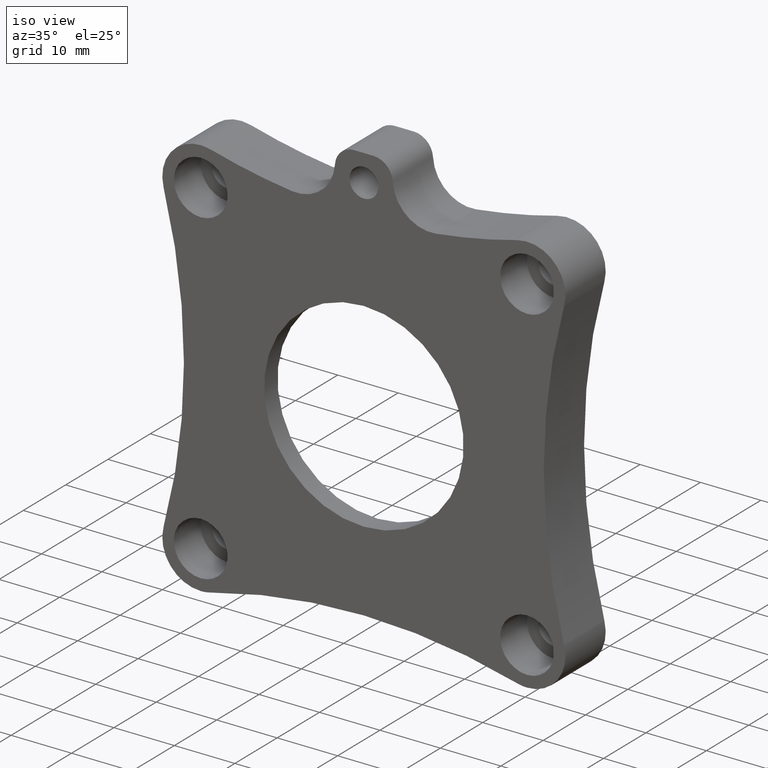
[diagram: clean part render]
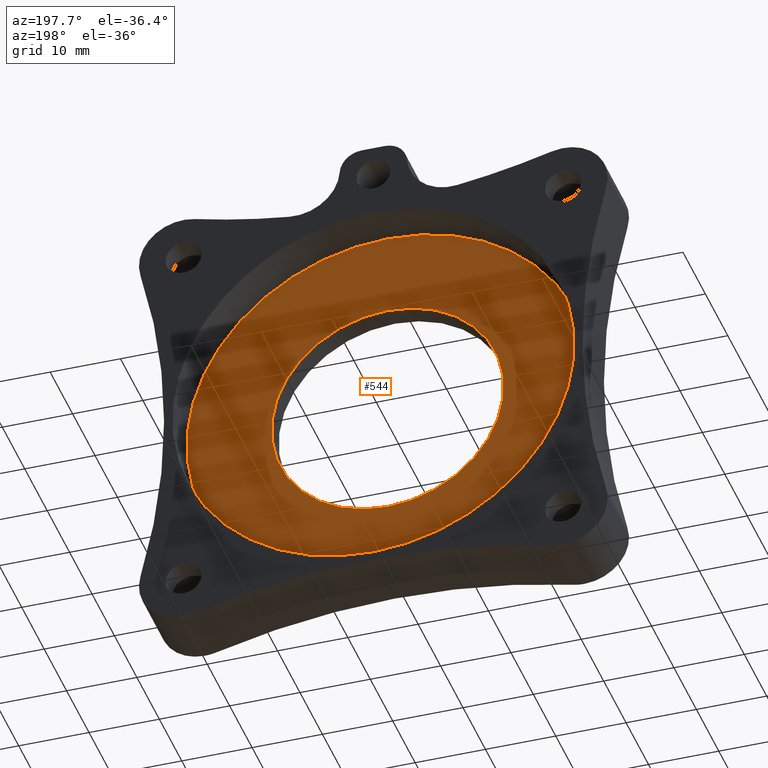
[diagram: tour spotlight — one face highlighted and labeled with its STEP entity id]
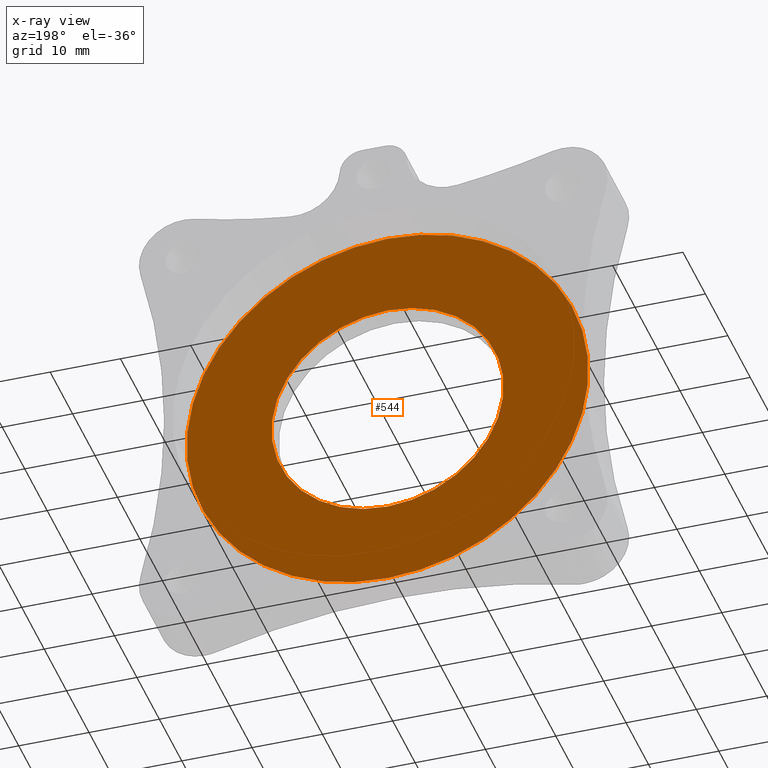
[diagram: x-ray of the same camera — body ghosted, this tour face saturated]
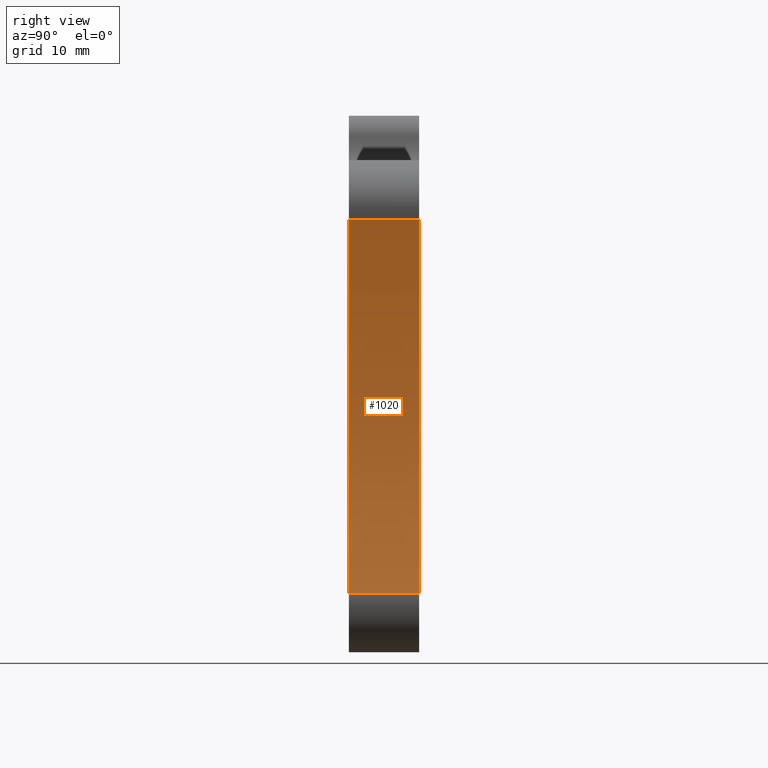
[diagram: tour spotlight — one face highlighted and labeled with its STEP entity id]
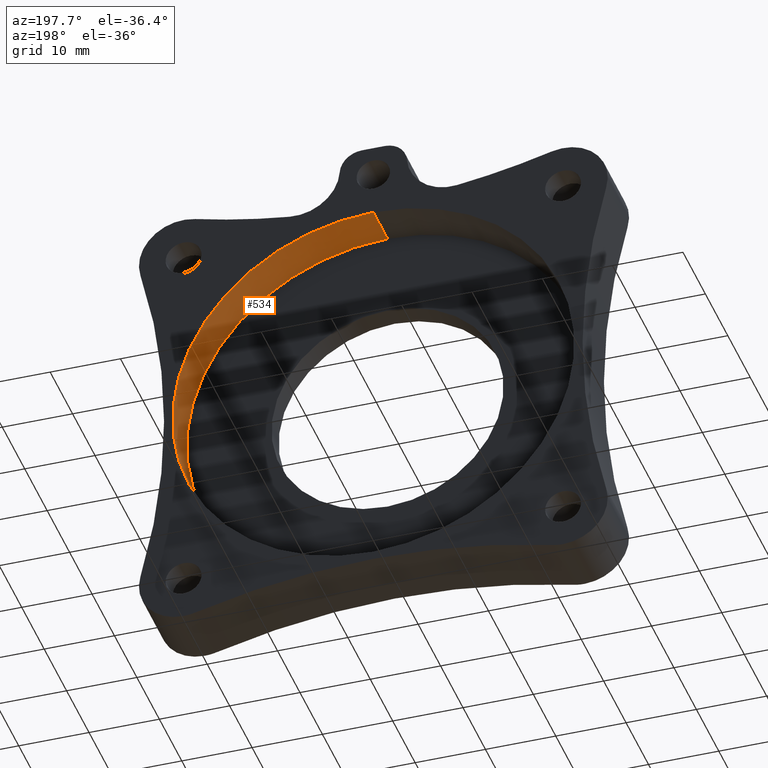
[diagram: tour spotlight — one face highlighted and labeled with its STEP entity id]
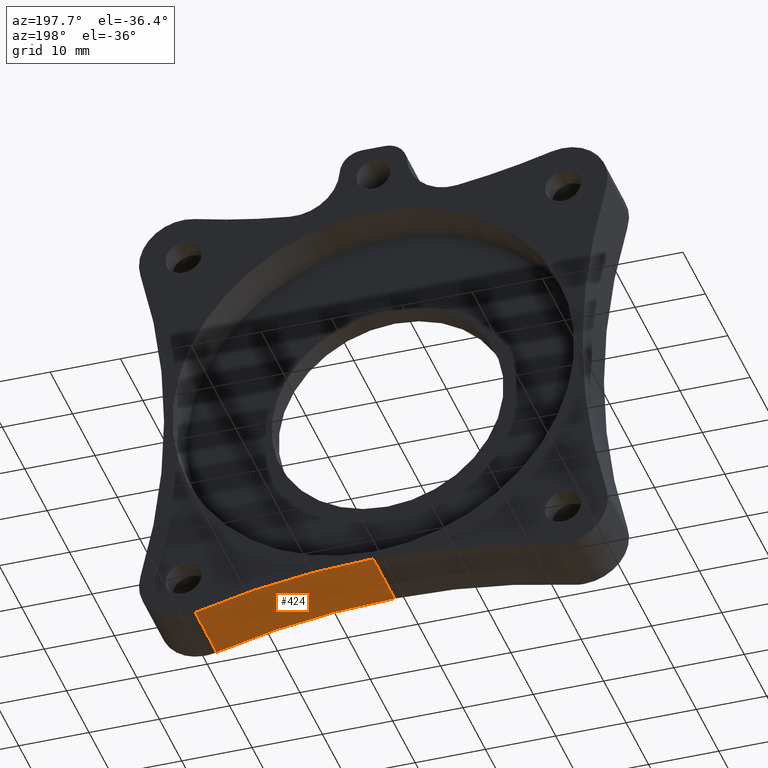
[diagram: tour spotlight — one face highlighted and labeled with its STEP entity id]
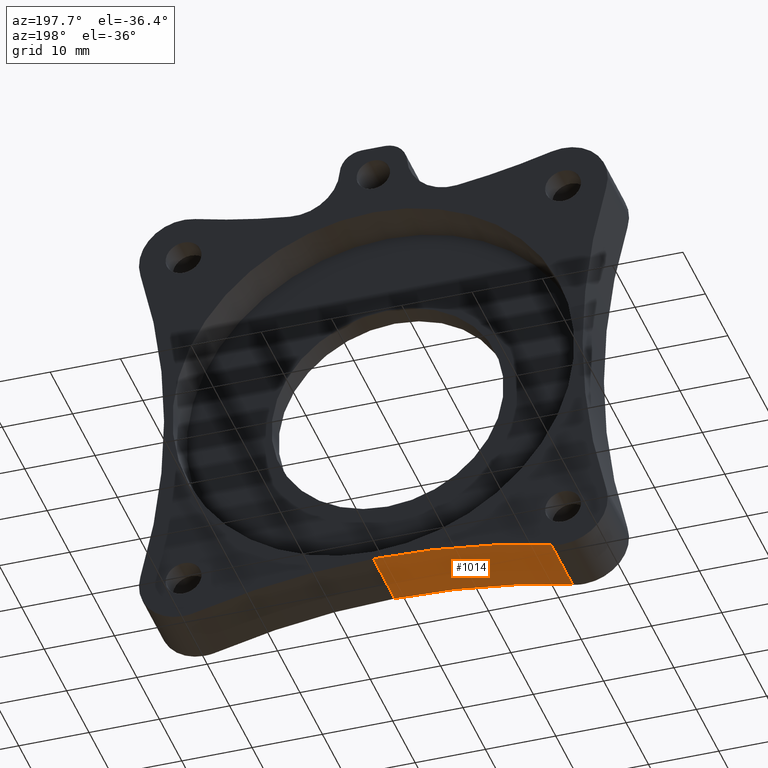
[diagram: tour spotlight — one face highlighted and labeled with its STEP entity id]
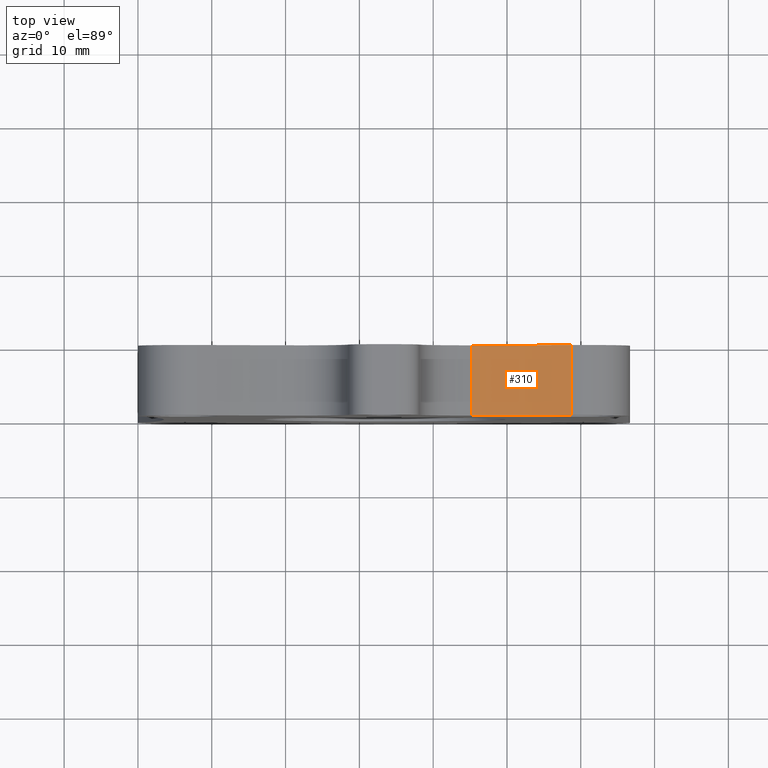
[diagram: tour spotlight — one face highlighted and labeled with its STEP entity id]
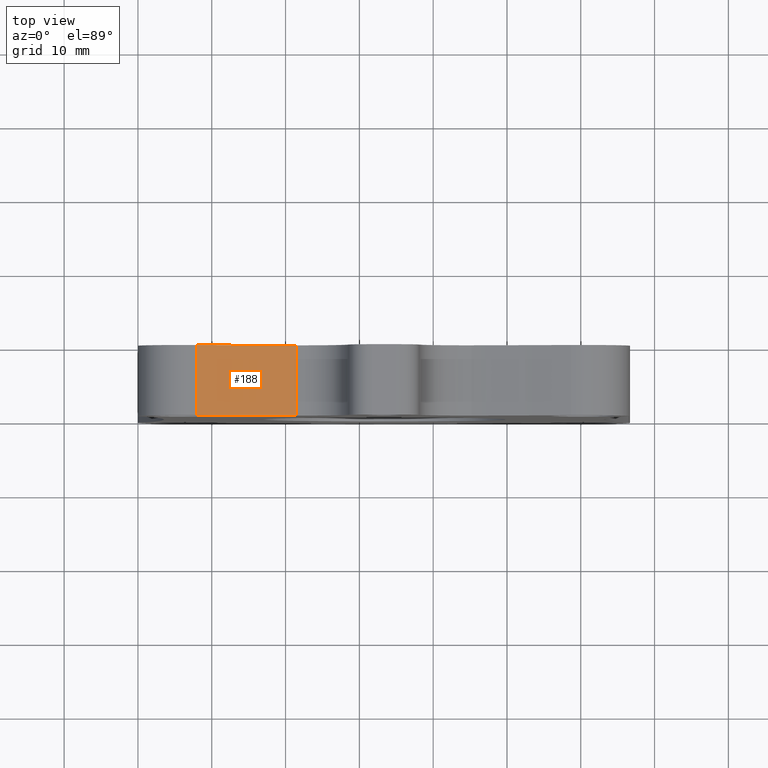
[diagram: tour spotlight — one face highlighted and labeled with its STEP entity id]
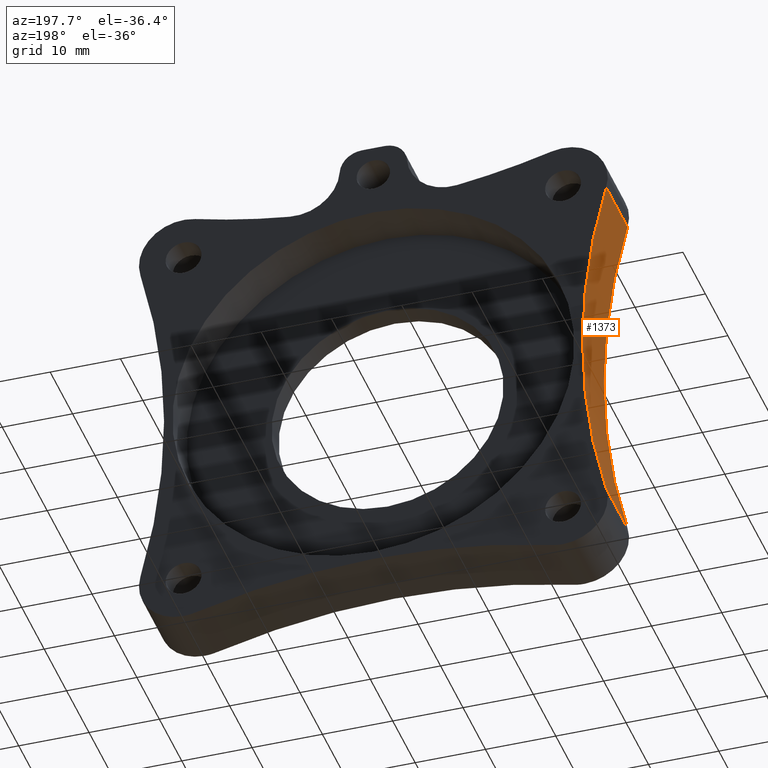
[diagram: tour spotlight — one face highlighted and labeled with its STEP entity id]
A machine part: a face-by-face anatomy tour. The part has 46 B-rep faces; the first image is the clean iso view, then the 8 largest visible faces are spotlighted one at a time (largest first), each with its STEP entity span.

Face 1 — auxiliary view, entity #544. An x-ray twin of the same camera follows (body ghosted, this face saturated) — the face is partly hidden behind the body. In plain terms, the highlighted planar face has unit normal (0, 1, 0).
Definition (entity closure, byte-faithful):
#3 = AXIS2_PLACEMENT_3D ( 'NONE', #752, #154, #988 ) ;
#19 = DIRECTION ( 'NONE',  ( 0.0000000000000000000, 0.0000000000000000000, 1.000000000000000000 ) ) ;
#87 = EDGE_LOOP ( 'NONE', ( #1187, #1343 ) ) ;
#114 = ORIENTED_EDGE ( 'NONE', *, *, #380, .T. ) ;
#154 = DIRECTION ( 'NONE',  ( 0.0000000000000000000, 1.000000000000000000, 0.0000000000000000000 ) ) ;
#162 = ORIENTED_EDGE ( 'NONE', *, *, #286, .T. ) ;
#215 = EDGE_CURVE ( 'NONE', #275, #1285, #845, .T. ) ;
#254 = CIRCLE ( 'NONE', #1176, 0.6500000000000001300 ) ;
#275 = VERTEX_POINT ( 'NONE', #611 ) ;
#280 = AXIS2_PLACEMENT_3D ( 'NONE', #513, #1328, #643 ) ;
#286 = EDGE_CURVE ( 'NONE', #1395, #1105, #254, .T. ) ;
#325 = CARTESIAN_POINT ( 'NONE',  ( 1.312500000000000000, 0.1250000000000000300, -1.312500000000000000 ) ) ;
#380 = EDGE_CURVE ( 'NONE', #1105, #1395, #745, .T. ) ;
#447 = DIRECTION ( 'NONE',  ( 0.0000000000000000000, 0.0000000000000000000, 1.000000000000000000 ) ) ;
#486 = DIRECTION ( 'NONE',  ( 0.0000000000000000000, 0.0000000000000000000, 1.000000000000000000 ) ) ;
#490 = CIRCLE ( 'NONE', #714, 1.124749999999999500 ) ;
#513 = CARTESIAN_POINT ( 'NONE',  ( 1.312500000000000000, 0.1250000000000000300, -1.312500000000000000 ) ) ;
#544 = ADVANCED_FACE ( 'NONE', ( #561, #1485 ), #634, .T. ) ;
#561 = FACE_OUTER_BOUND ( 'NONE', #87, .T. ) ;
#611 = CARTESIAN_POINT ( 'NONE',  ( 1.312500000000000200, 0.1250000000000000300, -2.437249999999999700 ) ) ;
#616 = CARTESIAN_POINT ( 'NONE',  ( 1.312500000000000000, 0.1250000000000000300, -1.312500000000000000 ) ) ;
#634 = PLANE ( 'NONE',  #3 ) ;
#637 = AXIS2_PLACEMENT_3D ( 'NONE', #616, #1307, #486 ) ;
#643 = DIRECTION ( 'NONE',  ( 0.0000000000000000000, 0.0000000000000000000, 1.000000000000000000 ) ) ;
#690 = EDGE_LOOP ( 'NONE', ( #114, #162 ) ) ;
#714 = AXIS2_PLACEMENT_3D ( 'NONE', #325, #1156, #447 ) ;
#736 = DIRECTION ( 'NONE',  ( -0.0000000000000000000, -1.000000000000000000, -0.0000000000000000000 ) ) ;
#745 = CIRCLE ( 'NONE', #280, 0.6500000000000001300 ) ;
#752 = CARTESIAN_POINT ( 'NONE',  ( 1.312500000000000000, 0.1250000000000000300, -1.312500000000000000 ) ) ;
#774 = EDGE_CURVE ( 'NONE', #1285, #275, #490, .T. ) ;
#845 = CIRCLE ( 'NONE', #637, 1.124749999999999500 ) ;
#988 = DIRECTION ( 'NONE',  ( 0.0000000000000000000, -0.0000000000000000000, 1.000000000000000000 ) ) ;
#1098 = CARTESIAN_POINT ( 'NONE',  ( 1.312500000000000000, 0.1250000000000000300, -1.962500000000000100 ) ) ;
#1105 = VERTEX_POINT ( 'NONE', #1258 ) ;
#1156 = DIRECTION ( 'NONE',  ( 0.0000000000000000000, 1.000000000000000000, 0.0000000000000000000 ) ) ;
#1176 = AXIS2_PLACEMENT_3D ( 'NONE', #1425, #736, #19 ) ;
#1187 = ORIENTED_EDGE ( 'NONE', *, *, #774, .T. ) ;
#1258 = CARTESIAN_POINT ( 'NONE',  ( 1.312500000000000000, 0.1250000000000000300, -0.6624999999999998700 ) ) ;
#1285 = VERTEX_POINT ( 'NONE', #1365 ) ;
#1307 = DIRECTION ( 'NONE',  ( 0.0000000000000000000, 1.000000000000000000, 0.0000000000000000000 ) ) ;
#1328 = DIRECTION ( 'NONE',  ( -0.0000000000000000000, -1.000000000000000000, -0.0000000000000000000 ) ) ;
#1343 = ORIENTED_EDGE ( 'NONE', *, *, #215, .T. ) ;
#1365 = CARTESIAN_POINT ( 'NONE',  ( 1.312500000000000000, 0.1250000000000000300, -0.1877500000000004700 ) ) ;
#1395 = VERTEX_POINT ( 'NONE', #1098 ) ;
#1425 = CARTESIAN_POINT ( 'NONE',  ( 1.312500000000000000, 0.1250000000000000300, -1.312500000000000000 ) ) ;
#1485 = FACE_BOUND ( 'NONE', #690, .T. ) ;

Face 2 — right view, entity #1020. In plain terms, the highlighted cylindrical surface (partial cylindrical patch) has radius 97.2397 mm, axis along (-0, 1, -0).
Definition (entity closure, byte-faithful):
#83 = CARTESIAN_POINT ( 'NONE',  ( 2.616366909433479400, 0.0000000000000000000, -2.309869246660809100 ) ) ;
#102 = LINE ( 'NONE', #83, #1301 ) ;
#187 = VECTOR ( 'NONE', #379, 39.37007874015748100 ) ;
#220 = VERTEX_POINT ( 'NONE', #1007 ) ;
#226 = VERTEX_POINT ( 'NONE', #649 ) ;
#228 = EDGE_LOOP ( 'NONE', ( #476, #469, #328, #746 ) ) ;
#292 = DIRECTION ( 'NONE',  ( -0.0000000000000000000, -1.000000000000000000, -0.0000000000000000000 ) ) ;
#328 = ORIENTED_EDGE ( 'NONE', *, *, #981, .T. ) ;
#336 = EDGE_CURVE ( 'NONE', #832, #226, #492, .T. ) ;
#379 = DIRECTION ( 'NONE',  ( -0.0000000000000000000, 1.000000000000000000, -0.0000000000000000000 ) ) ;
#439 = CYLINDRICAL_SURFACE ( 'NONE', #1077, 3.828334525268862500 ) ;
#469 = ORIENTED_EDGE ( 'NONE', *, *, #336, .F. ) ;
#476 = ORIENTED_EDGE ( 'NONE', *, *, #1478, .F. ) ;
#492 = LINE ( 'NONE', #1204, #187 ) ;
#509 = FACE_OUTER_BOUND ( 'NONE', #228, .T. ) ;
#649 = CARTESIAN_POINT ( 'NONE',  ( 2.616366909433478900, 0.3750000000000000600, -0.3151307533391926000 ) ) ;
#651 = CARTESIAN_POINT ( 'NONE',  ( 6.312500000000000000, 0.3750000000000000600, -1.312500000000000000 ) ) ;
#678 = AXIS2_PLACEMENT_3D ( 'NONE', #651, #1454, #773 ) ;
#746 = ORIENTED_EDGE ( 'NONE', *, *, #1081, .T. ) ;
#769 = AXIS2_PLACEMENT_3D ( 'NONE', #939, #292, #1118 ) ;
#770 = CIRCLE ( 'NONE', #678, 3.828334525268862500 ) ;
#773 = DIRECTION ( 'NONE',  ( 0.0000000000000000000, 0.0000000000000000000, 1.000000000000000000 ) ) ;
#782 = CARTESIAN_POINT ( 'NONE',  ( 6.312500000000000000, 0.0000000000000000000, -1.312500000000000000 ) ) ;
#832 = VERTEX_POINT ( 'NONE', #1166 ) ;
#872 = CIRCLE ( 'NONE', #769, 3.828334525268862500 ) ;
#903 = DIRECTION ( 'NONE',  ( -0.0000000000000000000, 1.000000000000000000, -0.0000000000000000000 ) ) ;
#919 = DIRECTION ( 'NONE',  ( -0.0000000000000000000, 1.000000000000000000, -0.0000000000000000000 ) ) ;
#939 = CARTESIAN_POINT ( 'NONE',  ( 6.312500000000000000, 0.0000000000000000000, -1.312500000000000000 ) ) ;
#981 = EDGE_CURVE ( 'NONE', #832, #1012, #872, .T. ) ;
#1007 = CARTESIAN_POINT ( 'NONE',  ( 2.616366909433479400, 0.3750000000000000600, -2.309869246660809100 ) ) ;
#1012 = VERTEX_POINT ( 'NONE', #1354 ) ;
#1020 = ADVANCED_FACE ( 'NONE', ( #509 ), #439, .F. ) ;
#1077 = AXIS2_PLACEMENT_3D ( 'NONE', #782, #903, #1468 ) ;
#1081 = EDGE_CURVE ( 'NONE', #1012, #220, #102, .T. ) ;
#1118 = DIRECTION ( 'NONE',  ( 0.0000000000000000000, 0.0000000000000000000, 1.000000000000000000 ) ) ;
#1166 = CARTESIAN_POINT ( 'NONE',  ( 2.616366909433478900, 0.0000000000000000000, -0.3151307533391926000 ) ) ;
#1204 = CARTESIAN_POINT ( 'NONE',  ( 2.616366909433478900, 0.0000000000000000000, -0.3151307533391926000 ) ) ;
#1301 = VECTOR ( 'NONE', #919, 39.37007874015748100 ) ;
#1354 = CARTESIAN_POINT ( 'NONE',  ( 2.616366909433479400, 0.0000000000000000000, -2.309869246660809100 ) ) ;
#1454 = DIRECTION ( 'NONE',  ( -0.0000000000000000000, -1.000000000000000000, -0.0000000000000000000 ) ) ;
#1468 = DIRECTION ( 'NONE',  ( 0.0000000000000000000, 0.0000000000000000000, 1.000000000000000000 ) ) ;
#1478 = EDGE_CURVE ( 'NONE', #226, #220, #770, .T. ) ;

Face 3 — auxiliary view, entity #534. In plain terms, the highlighted cylindrical surface (partial cylindrical patch) has radius 28.5686 mm, axis along (-0, 1, -0).
Definition (entity closure, byte-faithful):
#24 = DIRECTION ( 'NONE',  ( -0.0000000000000000000, 1.000000000000000000, -0.0000000000000000000 ) ) ;
#73 = DIRECTION ( 'NONE',  ( 0.0000000000000000000, 0.0000000000000000000, 1.000000000000000000 ) ) ;
#170 = VERTEX_POINT ( 'NONE', #1170 ) ;
#183 = ORIENTED_EDGE ( 'NONE', *, *, #1276, .T. ) ;
#193 = CARTESIAN_POINT ( 'NONE',  ( 1.312500000000000200, 0.1250000000000000300, -2.437249999999999700 ) ) ;
#236 = CYLINDRICAL_SURFACE ( 'NONE', #1453, 1.124749999999999500 ) ;
#256 = EDGE_CURVE ( 'NONE', #1285, #170, #521, .T. ) ;
#275 = VERTEX_POINT ( 'NONE', #611 ) ;
#305 = DIRECTION ( 'NONE',  ( -0.0000000000000000000, 1.000000000000000000, -0.0000000000000000000 ) ) ;
#321 = VECTOR ( 'NONE', #305, 39.37007874015748100 ) ;
#325 = CARTESIAN_POINT ( 'NONE',  ( 1.312500000000000000, 0.1250000000000000300, -1.312500000000000000 ) ) ;
#376 = ORIENTED_EDGE ( 'NONE', *, *, #256, .T. ) ;
#447 = DIRECTION ( 'NONE',  ( 0.0000000000000000000, 0.0000000000000000000, 1.000000000000000000 ) ) ;
#480 = CARTESIAN_POINT ( 'NONE',  ( 1.312500000000000000, 0.1250000000000000300, -0.1877500000000004700 ) ) ;
#490 = CIRCLE ( 'NONE', #714, 1.124749999999999500 ) ;
#521 = LINE ( 'NONE', #480, #1415 ) ;
#534 = ADVANCED_FACE ( 'NONE', ( #1210 ), #236, .F. ) ;
#611 = CARTESIAN_POINT ( 'NONE',  ( 1.312500000000000200, 0.1250000000000000300, -2.437249999999999700 ) ) ;
#639 = VERTEX_POINT ( 'NONE', #970 ) ;
#681 = LINE ( 'NONE', #193, #321 ) ;
#714 = AXIS2_PLACEMENT_3D ( 'NONE', #325, #1156, #447 ) ;
#774 = EDGE_CURVE ( 'NONE', #1285, #275, #490, .T. ) ;
#793 = DIRECTION ( 'NONE',  ( 0.0000000000000000000, 1.000000000000000000, 0.0000000000000000000 ) ) ;
#865 = CARTESIAN_POINT ( 'NONE',  ( 1.312500000000000000, 0.1250000000000000300, -1.312500000000000000 ) ) ;
#970 = CARTESIAN_POINT ( 'NONE',  ( 1.312500000000000200, 0.3750000000000000600, -2.437249999999999700 ) ) ;
#985 = DIRECTION ( 'NONE',  ( 0.0000000000000000000, 0.0000000000000000000, 1.000000000000000000 ) ) ;
#1156 = DIRECTION ( 'NONE',  ( 0.0000000000000000000, 1.000000000000000000, 0.0000000000000000000 ) ) ;
#1170 = CARTESIAN_POINT ( 'NONE',  ( 1.312500000000000000, 0.3750000000000000600, -0.1877500000000004700 ) ) ;
#1186 = DIRECTION ( 'NONE',  ( -0.0000000000000000000, 1.000000000000000000, -0.0000000000000000000 ) ) ;
#1195 = AXIS2_PLACEMENT_3D ( 'NONE', #1476, #793, #73 ) ;
#1210 = FACE_OUTER_BOUND ( 'NONE', #1336, .T. ) ;
#1231 = ORIENTED_EDGE ( 'NONE', *, *, #774, .F. ) ;
#1276 = EDGE_CURVE ( 'NONE', #170, #639, #1286, .T. ) ;
#1280 = ORIENTED_EDGE ( 'NONE', *, *, #1302, .F. ) ;
#1285 = VERTEX_POINT ( 'NONE', #1365 ) ;
#1286 = CIRCLE ( 'NONE', #1195, 1.124749999999999500 ) ;
#1302 = EDGE_CURVE ( 'NONE', #275, #639, #681, .T. ) ;
#1336 = EDGE_LOOP ( 'NONE', ( #1280, #1231, #376, #183 ) ) ;
#1365 = CARTESIAN_POINT ( 'NONE',  ( 1.312500000000000000, 0.1250000000000000300, -0.1877500000000004700 ) ) ;
#1415 = VECTOR ( 'NONE', #1186, 39.37007874015748100 ) ;
#1453 = AXIS2_PLACEMENT_3D ( 'NONE', #865, #24, #985 ) ;
#1476 = CARTESIAN_POINT ( 'NONE',  ( 1.312500000000000000, 0.3750000000000000600, -1.312500000000000000 ) ) ;

Face 4 — auxiliary view, entity #424. In plain terms, the highlighted cylindrical surface (partial cylindrical patch) has radius 97.2397 mm, axis along (-0, 1, -0).
Definition (entity closure, byte-faithful):
#37 = DIRECTION ( 'NONE',  ( 0.0000000000000000000, 0.0000000000000000000, 1.000000000000000000 ) ) ;
#57 = CARTESIAN_POINT ( 'NONE',  ( 2.309869246660806800, 0.0000000000000000000, -2.616366909433478900 ) ) ;
#82 = LINE ( 'NONE', #57, #1257 ) ;
#128 = EDGE_CURVE ( 'NONE', #515, #531, #82, .T. ) ;
#147 = CARTESIAN_POINT ( 'NONE',  ( 2.309869246660806800, 0.3750000000000000600, -2.616366909433478900 ) ) ;
#190 = VERTEX_POINT ( 'NONE', #660 ) ;
#239 = CARTESIAN_POINT ( 'NONE',  ( 1.312500000000000000, 0.0000000000000000000, -2.484165474731136600 ) ) ;
#332 = EDGE_LOOP ( 'NONE', ( #1290, #343, #1442, #650 ) ) ;
#343 = ORIENTED_EDGE ( 'NONE', *, *, #413, .T. ) ;
#344 = CYLINDRICAL_SURFACE ( 'NONE', #765, 3.828334525268863400 ) ;
#357 = EDGE_CURVE ( 'NONE', #531, #605, #1091, .T. ) ;
#413 = EDGE_CURVE ( 'NONE', #190, #605, #1361, .T. ) ;
#424 = ADVANCED_FACE ( 'NONE', ( #708 ), #344, .F. ) ;
#431 = DIRECTION ( 'NONE',  ( -0.0000000000000000000, -1.000000000000000000, -0.0000000000000000000 ) ) ;
#515 = VERTEX_POINT ( 'NONE', #747 ) ;
#531 = VERTEX_POINT ( 'NONE', #147 ) ;
#603 = DIRECTION ( 'NONE',  ( -0.0000000000000000000, 1.000000000000000000, -0.0000000000000000000 ) ) ;
#605 = VERTEX_POINT ( 'NONE', #1183 ) ;
#625 = DIRECTION ( 'NONE',  ( -0.0000000000000000000, 1.000000000000000000, -0.0000000000000000000 ) ) ;
#650 = ORIENTED_EDGE ( 'NONE', *, *, #128, .F. ) ;
#660 = CARTESIAN_POINT ( 'NONE',  ( 1.312500000000000000, 0.0000000000000000000, -2.484165474731136600 ) ) ;
#708 = FACE_OUTER_BOUND ( 'NONE', #332, .T. ) ;
#720 = DIRECTION ( 'NONE',  ( 0.0000000000000000000, 0.0000000000000000000, 1.000000000000000000 ) ) ;
#747 = CARTESIAN_POINT ( 'NONE',  ( 2.309869246660806800, 0.0000000000000000000, -2.616366909433478900 ) ) ;
#755 = DIRECTION ( 'NONE',  ( -0.0000000000000000000, -1.000000000000000000, -0.0000000000000000000 ) ) ;
#765 = AXIS2_PLACEMENT_3D ( 'NONE', #1516, #603, #720 ) ;
#1023 = VECTOR ( 'NONE', #1070, 39.37007874015748100 ) ;
#1050 = CIRCLE ( 'NONE', #1297, 3.828334525268863400 ) ;
#1056 = EDGE_CURVE ( 'NONE', #515, #190, #1050, .T. ) ;
#1070 = DIRECTION ( 'NONE',  ( -0.0000000000000000000, 1.000000000000000000, -0.0000000000000000000 ) ) ;
#1091 = CIRCLE ( 'NONE', #1486, 3.828334525268863400 ) ;
#1139 = CARTESIAN_POINT ( 'NONE',  ( 1.312500000000000000, 0.0000000000000000000, -6.312500000000000000 ) ) ;
#1183 = CARTESIAN_POINT ( 'NONE',  ( 1.312500000000000000, 0.3750000000000000600, -2.484165474731136600 ) ) ;
#1251 = DIRECTION ( 'NONE',  ( 0.0000000000000000000, 0.0000000000000000000, 1.000000000000000000 ) ) ;
#1257 = VECTOR ( 'NONE', #625, 39.37007874015748100 ) ;
#1290 = ORIENTED_EDGE ( 'NONE', *, *, #1056, .T. ) ;
#1297 = AXIS2_PLACEMENT_3D ( 'NONE', #1139, #431, #1251 ) ;
#1361 = LINE ( 'NONE', #239, #1023 ) ;
#1440 = CARTESIAN_POINT ( 'NONE',  ( 1.312500000000000000, 0.3750000000000000600, -6.312500000000000000 ) ) ;
#1442 = ORIENTED_EDGE ( 'NONE', *, *, #357, .F. ) ;
#1486 = AXIS2_PLACEMENT_3D ( 'NONE', #1440, #755, #37 ) ;
#1516 = CARTESIAN_POINT ( 'NONE',  ( 1.312500000000000000, 0.0000000000000000000, -6.312500000000000000 ) ) ;

Face 5 — auxiliary view, entity #1014. In plain terms, the highlighted cylindrical surface (partial cylindrical patch) has radius 97.2397 mm, axis along (-0, 1, -0).
Definition (entity closure, byte-faithful):
#8 = CARTESIAN_POINT ( 'NONE',  ( 0.3151307533391903800, 0.0000000000000000000, -2.616366909433478900 ) ) ;
#118 = DIRECTION ( 'NONE',  ( -0.0000000000000000000, -1.000000000000000000, -0.0000000000000000000 ) ) ;
#161 = FACE_OUTER_BOUND ( 'NONE', #817, .T. ) ;
#190 = VERTEX_POINT ( 'NONE', #660 ) ;
#206 = DIRECTION ( 'NONE',  ( -0.0000000000000000000, -1.000000000000000000, -0.0000000000000000000 ) ) ;
#221 = CIRCLE ( 'NONE', #467, 3.828334525268863400 ) ;
#239 = CARTESIAN_POINT ( 'NONE',  ( 1.312500000000000000, 0.0000000000000000000, -2.484165474731136600 ) ) ;
#312 = ORIENTED_EDGE ( 'NONE', *, *, #464, .T. ) ;
#316 = VECTOR ( 'NONE', #1189, 39.37007874015748100 ) ;
#359 = CARTESIAN_POINT ( 'NONE',  ( 0.3151307533391903800, 0.3750000000000000600, -2.616366909433478900 ) ) ;
#413 = EDGE_CURVE ( 'NONE', #190, #605, #1361, .T. ) ;
#426 = VERTEX_POINT ( 'NONE', #359 ) ;
#464 = EDGE_CURVE ( 'NONE', #1049, #426, #951, .T. ) ;
#467 = AXIS2_PLACEMENT_3D ( 'NONE', #922, #206, #1034 ) ;
#510 = ORIENTED_EDGE ( 'NONE', *, *, #551, .T. ) ;
#535 = DIRECTION ( 'NONE',  ( 0.0000000000000000000, 0.0000000000000000000, 1.000000000000000000 ) ) ;
#551 = EDGE_CURVE ( 'NONE', #190, #1049, #595, .T. ) ;
#595 = CIRCLE ( 'NONE', #1295, 3.828334525268863400 ) ;
#605 = VERTEX_POINT ( 'NONE', #1183 ) ;
#660 = CARTESIAN_POINT ( 'NONE',  ( 1.312500000000000000, 0.0000000000000000000, -2.484165474731136600 ) ) ;
#695 = CARTESIAN_POINT ( 'NONE',  ( 1.312500000000000000, 0.0000000000000000000, -6.312500000000000000 ) ) ;
#698 = DIRECTION ( 'NONE',  ( -0.0000000000000000000, 1.000000000000000000, -0.0000000000000000000 ) ) ;
#699 = ORIENTED_EDGE ( 'NONE', *, *, #737, .F. ) ;
#737 = EDGE_CURVE ( 'NONE', #605, #426, #221, .T. ) ;
#792 = ORIENTED_EDGE ( 'NONE', *, *, #413, .F. ) ;
#817 = EDGE_LOOP ( 'NONE', ( #792, #510, #312, #699 ) ) ;
#837 = CARTESIAN_POINT ( 'NONE',  ( 1.312500000000000000, 0.0000000000000000000, -6.312500000000000000 ) ) ;
#922 = CARTESIAN_POINT ( 'NONE',  ( 1.312500000000000000, 0.3750000000000000600, -6.312500000000000000 ) ) ;
#951 = LINE ( 'NONE', #8, #316 ) ;
#955 = DIRECTION ( 'NONE',  ( 0.0000000000000000000, 0.0000000000000000000, 1.000000000000000000 ) ) ;
#1004 = AXIS2_PLACEMENT_3D ( 'NONE', #695, #698, #535 ) ;
#1014 = ADVANCED_FACE ( 'NONE', ( #161 ), #1067, .F. ) ;
#1023 = VECTOR ( 'NONE', #1070, 39.37007874015748100 ) ;
#1034 = DIRECTION ( 'NONE',  ( 0.0000000000000000000, 0.0000000000000000000, 1.000000000000000000 ) ) ;
#1049 = VERTEX_POINT ( 'NONE', #1237 ) ;
#1067 = CYLINDRICAL_SURFACE ( 'NONE', #1004, 3.828334525268863400 ) ;
#1070 = DIRECTION ( 'NONE',  ( -0.0000000000000000000, 1.000000000000000000, -0.0000000000000000000 ) ) ;
#1183 = CARTESIAN_POINT ( 'NONE',  ( 1.312500000000000000, 0.3750000000000000600, -2.484165474731136600 ) ) ;
#1189 = DIRECTION ( 'NONE',  ( -0.0000000000000000000, 1.000000000000000000, -0.0000000000000000000 ) ) ;
#1237 = CARTESIAN_POINT ( 'NONE',  ( 0.3151307533391903800, 0.0000000000000000000, -2.616366909433478900 ) ) ;
#1295 = AXIS2_PLACEMENT_3D ( 'NONE', #837, #118, #955 ) ;
#1361 = LINE ( 'NONE', #239, #1023 ) ;

Face 6 — top view, entity #310. In plain terms, the highlighted cylindrical surface (partial cylindrical patch) has radius 97.2397 mm, axis along (-0, 1, -0).
Definition (entity closure, byte-faithful):
#23 = DIRECTION ( 'NONE',  ( -0.0000000000000000000, 1.000000000000000000, -0.0000000000000000000 ) ) ;
#39 = VECTOR ( 'NONE', #91, 39.37007874015748100 ) ;
#40 = AXIS2_PLACEMENT_3D ( 'NONE', #370, #23, #1198 ) ;
#44 = VERTEX_POINT ( 'NONE', #1254 ) ;
#91 = DIRECTION ( 'NONE',  ( 0.0000000000000000000, -1.000000000000000000, 0.0000000000000000000 ) ) ;
#141 = DIRECTION ( 'NONE',  ( -0.0000000000000000000, 1.000000000000000000, -0.0000000000000000000 ) ) ;
#146 = EDGE_CURVE ( 'NONE', #468, #44, #956, .T. ) ;
#189 = VERTEX_POINT ( 'NONE', #1462 ) ;
#222 = FACE_OUTER_BOUND ( 'NONE', #586, .T. ) ;
#257 = CARTESIAN_POINT ( 'NONE',  ( 1.780565895733793500, 0.3750000000000000600, -0.1121130795933015200 ) ) ;
#310 = ADVANCED_FACE ( 'NONE', ( #222 ), #1397, .F. ) ;
#370 = CARTESIAN_POINT ( 'NONE',  ( 1.312500000000000000, 0.0000000000000000000, 3.687500000000000400 ) ) ;
#409 = CARTESIAN_POINT ( 'NONE',  ( 1.312500000000000000, 0.3750000000000000600, 3.687500000000000400 ) ) ;
#468 = VERTEX_POINT ( 'NONE', #257 ) ;
#475 = ORIENTED_EDGE ( 'NONE', *, *, #146, .T. ) ;
#529 = DIRECTION ( 'NONE',  ( 0.0000000000000000000, 0.0000000000000000000, 1.000000000000000000 ) ) ;
#575 = AXIS2_PLACEMENT_3D ( 'NONE', #1306, #614, #1419 ) ;
#586 = EDGE_LOOP ( 'NONE', ( #1000, #475, #1384, #1100 ) ) ;
#614 = DIRECTION ( 'NONE',  ( -0.0000000000000000000, -1.000000000000000000, -0.0000000000000000000 ) ) ;
#632 = EDGE_CURVE ( 'NONE', #44, #944, #764, .T. ) ;
#668 = EDGE_CURVE ( 'NONE', #944, #189, #965, .T. ) ;
#764 = CIRCLE ( 'NONE', #575, 3.828334525268863400 ) ;
#813 = CARTESIAN_POINT ( 'NONE',  ( 2.309869246660807700, 0.0000000000000000000, -0.008633090566521600000 ) ) ;
#936 = VECTOR ( 'NONE', #141, 39.37007874015748100 ) ;
#944 = VERTEX_POINT ( 'NONE', #813 ) ;
#956 = LINE ( 'NONE', #1417, #39 ) ;
#965 = LINE ( 'NONE', #1310, #936 ) ;
#1000 = ORIENTED_EDGE ( 'NONE', *, *, #1199, .F. ) ;
#1054 = AXIS2_PLACEMENT_3D ( 'NONE', #409, #1228, #529 ) ;
#1100 = ORIENTED_EDGE ( 'NONE', *, *, #668, .T. ) ;
#1198 = DIRECTION ( 'NONE',  ( 0.0000000000000000000, 0.0000000000000000000, 1.000000000000000000 ) ) ;
#1199 = EDGE_CURVE ( 'NONE', #468, #189, #1323, .T. ) ;
#1228 = DIRECTION ( 'NONE',  ( -0.0000000000000000000, -1.000000000000000000, -0.0000000000000000000 ) ) ;
#1254 = CARTESIAN_POINT ( 'NONE',  ( 1.780565895733793500, 0.0000000000000000000, -0.1121130795933015200 ) ) ;
#1306 = CARTESIAN_POINT ( 'NONE',  ( 1.312500000000000000, 0.0000000000000000000, 3.687500000000000400 ) ) ;
#1310 = CARTESIAN_POINT ( 'NONE',  ( 2.309869246660807700, 0.0000000000000000000, -0.008633090566521600000 ) ) ;
#1323 = CIRCLE ( 'NONE', #1054, 3.828334525268863400 ) ;
#1384 = ORIENTED_EDGE ( 'NONE', *, *, #632, .T. ) ;
#1397 = CYLINDRICAL_SURFACE ( 'NONE', #40, 3.828334525268863400 ) ;
#1417 = CARTESIAN_POINT ( 'NONE',  ( 1.780565895733793500, 0.0000000000000000000, -0.1121130795933015200 ) ) ;
#1419 = DIRECTION ( 'NONE',  ( 0.0000000000000000000, 0.0000000000000000000, 1.000000000000000000 ) ) ;
#1462 = CARTESIAN_POINT ( 'NONE',  ( 2.309869246660807700, 0.3750000000000000600, -0.008633090566521600000 ) ) ;

Face 7 — top view, entity #188. In plain terms, the highlighted cylindrical surface (partial cylindrical patch) has radius 97.2397 mm, axis along (-0, 1, -0).
Definition (entity closure, byte-faithful):
#35 = CARTESIAN_POINT ( 'NONE',  ( 1.312500000000000000, 0.0000000000000000000, 3.687500000000000400 ) ) ;
#63 = EDGE_CURVE ( 'NONE', #89, #1196, #430, .T. ) ;
#89 = VERTEX_POINT ( 'NONE', #528 ) ;
#157 = DIRECTION ( 'NONE',  ( 0.0000000000000000000, 0.0000000000000000000, 1.000000000000000000 ) ) ;
#174 = CARTESIAN_POINT ( 'NONE',  ( 0.3151307533391928300, 0.0000000000000000000, -0.008633090566520781200 ) ) ;
#188 = ADVANCED_FACE ( 'NONE', ( #1514 ), #569, .F. ) ;
#240 = CIRCLE ( 'NONE', #345, 3.828334525268863400 ) ;
#251 = CARTESIAN_POINT ( 'NONE',  ( 0.8444341042662069100, 0.0000000000000000000, -0.1121130795933015200 ) ) ;
#327 = CARTESIAN_POINT ( 'NONE',  ( 0.3151307533391928300, 0.3750000000000000600, -0.008633090566520781200 ) ) ;
#345 = AXIS2_PLACEMENT_3D ( 'NONE', #35, #875, #157 ) ;
#382 = CARTESIAN_POINT ( 'NONE',  ( 0.3151307533391928300, 0.0000000000000000000, -0.008633090566520781200 ) ) ;
#430 = LINE ( 'NONE', #251, #465 ) ;
#465 = VECTOR ( 'NONE', #1162, 39.37007874015748100 ) ;
#528 = CARTESIAN_POINT ( 'NONE',  ( 0.8444341042662069100, 0.0000000000000000000, -0.1121130795933015200 ) ) ;
#560 = AXIS2_PLACEMENT_3D ( 'NONE', #1260, #568, #1381 ) ;
#568 = DIRECTION ( 'NONE',  ( -0.0000000000000000000, -1.000000000000000000, -0.0000000000000000000 ) ) ;
#569 = CYLINDRICAL_SURFACE ( 'NONE', #712, 3.828334525268863400 ) ;
#653 = CARTESIAN_POINT ( 'NONE',  ( 0.8444341042662069100, 0.3750000000000000600, -0.1121130795933015200 ) ) ;
#664 = ORIENTED_EDGE ( 'NONE', *, *, #1432, .F. ) ;
#712 = AXIS2_PLACEMENT_3D ( 'NONE', #946, #943, #729 ) ;
#729 = DIRECTION ( 'NONE',  ( 0.0000000000000000000, 0.0000000000000000000, 1.000000000000000000 ) ) ;
#741 = EDGE_CURVE ( 'NONE', #1147, #1196, #1423, .T. ) ;
#816 = VECTOR ( 'NONE', #995, 39.37007874015748100 ) ;
#850 = ORIENTED_EDGE ( 'NONE', *, *, #741, .F. ) ;
#854 = EDGE_LOOP ( 'NONE', ( #1129, #1390, #850, #664 ) ) ;
#875 = DIRECTION ( 'NONE',  ( -0.0000000000000000000, -1.000000000000000000, -0.0000000000000000000 ) ) ;
#943 = DIRECTION ( 'NONE',  ( -0.0000000000000000000, 1.000000000000000000, -0.0000000000000000000 ) ) ;
#946 = CARTESIAN_POINT ( 'NONE',  ( 1.312500000000000000, 0.0000000000000000000, 3.687500000000000400 ) ) ;
#995 = DIRECTION ( 'NONE',  ( -0.0000000000000000000, 1.000000000000000000, -0.0000000000000000000 ) ) ;
#1110 = LINE ( 'NONE', #382, #816 ) ;
#1129 = ORIENTED_EDGE ( 'NONE', *, *, #1392, .T. ) ;
#1147 = VERTEX_POINT ( 'NONE', #327 ) ;
#1162 = DIRECTION ( 'NONE',  ( -0.0000000000000000000, 1.000000000000000000, -0.0000000000000000000 ) ) ;
#1196 = VERTEX_POINT ( 'NONE', #653 ) ;
#1224 = VERTEX_POINT ( 'NONE', #174 ) ;
#1260 = CARTESIAN_POINT ( 'NONE',  ( 1.312500000000000000, 0.3750000000000000600, 3.687500000000000400 ) ) ;
#1381 = DIRECTION ( 'NONE',  ( 0.0000000000000000000, 0.0000000000000000000, 1.000000000000000000 ) ) ;
#1390 = ORIENTED_EDGE ( 'NONE', *, *, #63, .T. ) ;
#1392 = EDGE_CURVE ( 'NONE', #1224, #89, #240, .T. ) ;
#1423 = CIRCLE ( 'NONE', #560, 3.828334525268863400 ) ;
#1432 = EDGE_CURVE ( 'NONE', #1224, #1147, #1110, .T. ) ;
#1514 = FACE_OUTER_BOUND ( 'NONE', #854, .T. ) ;

Face 8 — auxiliary view, entity #1373. In plain terms, the highlighted cylindrical surface (partial cylindrical patch) has radius 97.2397 mm, axis along (-0, 1, -0).
Definition (entity closure, byte-faithful):
#7 = VECTOR ( 'NONE', #624, 39.37007874015748100 ) ;
#10 = AXIS2_PLACEMENT_3D ( 'NONE', #93, #930, #214 ) ;
#28 = LINE ( 'NONE', #530, #1244 ) ;
#33 = CARTESIAN_POINT ( 'NONE',  ( 0.008633090566521018800, 0.3750000000000000600, -0.3151307533391929400 ) ) ;
#64 = ORIENTED_EDGE ( 'NONE', *, *, #906, .T. ) ;
#93 = CARTESIAN_POINT ( 'NONE',  ( -3.687500000000000400, 0.0000000000000000000, -1.312500000000000000 ) ) ;
#101 = ORIENTED_EDGE ( 'NONE', *, *, #1127, .T. ) ;
#124 = EDGE_LOOP ( 'NONE', ( #559, #913, #101, #64 ) ) ;
#153 = CARTESIAN_POINT ( 'NONE',  ( -3.687500000000000400, 0.0000000000000000000, -1.312500000000000000 ) ) ;
#214 = DIRECTION ( 'NONE',  ( 0.0000000000000000000, 0.0000000000000000000, 1.000000000000000000 ) ) ;
#229 = EDGE_CURVE ( 'NONE', #339, #541, #242, .T. ) ;
#242 = CIRCLE ( 'NONE', #952, 3.828334525268863400 ) ;
#247 = DIRECTION ( 'NONE',  ( -0.0000000000000000000, -1.000000000000000000, -0.0000000000000000000 ) ) ;
#271 = DIRECTION ( 'NONE',  ( -0.0000000000000000000, 1.000000000000000000, -0.0000000000000000000 ) ) ;
#339 = VERTEX_POINT ( 'NONE', #750 ) ;
#377 = DIRECTION ( 'NONE',  ( 0.0000000000000000000, 0.0000000000000000000, 1.000000000000000000 ) ) ;
#429 = AXIS2_PLACEMENT_3D ( 'NONE', #153, #271, #377 ) ;
#446 = CARTESIAN_POINT ( 'NONE',  ( 0.008633090566521018800, 0.0000000000000000000, -0.3151307533391929400 ) ) ;
#491 = CARTESIAN_POINT ( 'NONE',  ( 0.008633090566520883500, 0.0000000000000000000, -2.309869246660807300 ) ) ;
#517 = CYLINDRICAL_SURFACE ( 'NONE', #429, 3.828334525268863400 ) ;
#530 = CARTESIAN_POINT ( 'NONE',  ( 0.008633090566521018800, 0.0000000000000000000, -0.3151307533391929400 ) ) ;
#541 = VERTEX_POINT ( 'NONE', #33 ) ;
#559 = ORIENTED_EDGE ( 'NONE', *, *, #229, .F. ) ;
#624 = DIRECTION ( 'NONE',  ( -0.0000000000000000000, 1.000000000000000000, -0.0000000000000000000 ) ) ;
#666 = EDGE_CURVE ( 'NONE', #1346, #339, #1267, .T. ) ;
#750 = CARTESIAN_POINT ( 'NONE',  ( 0.008633090566520883500, 0.3750000000000000600, -2.309869246660807300 ) ) ;
#842 = FACE_OUTER_BOUND ( 'NONE', #124, .T. ) ;
#906 = EDGE_CURVE ( 'NONE', #972, #541, #28, .T. ) ;
#913 = ORIENTED_EDGE ( 'NONE', *, *, #666, .F. ) ;
#930 = DIRECTION ( 'NONE',  ( -0.0000000000000000000, -1.000000000000000000, -0.0000000000000000000 ) ) ;
#952 = AXIS2_PLACEMENT_3D ( 'NONE', #966, #247, #1080 ) ;
#966 = CARTESIAN_POINT ( 'NONE',  ( -3.687500000000000400, 0.3750000000000000600, -1.312500000000000000 ) ) ;
#972 = VERTEX_POINT ( 'NONE', #446 ) ;
#1010 = CIRCLE ( 'NONE', #10, 3.828334525268863400 ) ;
#1080 = DIRECTION ( 'NONE',  ( 0.0000000000000000000, 0.0000000000000000000, 1.000000000000000000 ) ) ;
#1127 = EDGE_CURVE ( 'NONE', #1346, #972, #1010, .T. ) ;
#1244 = VECTOR ( 'NONE', #1353, 39.37007874015748100 ) ;
#1267 = LINE ( 'NONE', #491, #7 ) ;
#1346 = VERTEX_POINT ( 'NONE', #1429 ) ;
#1353 = DIRECTION ( 'NONE',  ( -0.0000000000000000000, 1.000000000000000000, -0.0000000000000000000 ) ) ;
#1373 = ADVANCED_FACE ( 'NONE', ( #842 ), #517, .F. ) ;
#1429 = CARTESIAN_POINT ( 'NONE',  ( 0.008633090566520883500, 0.0000000000000000000, -2.309869246660807300 ) ) ;